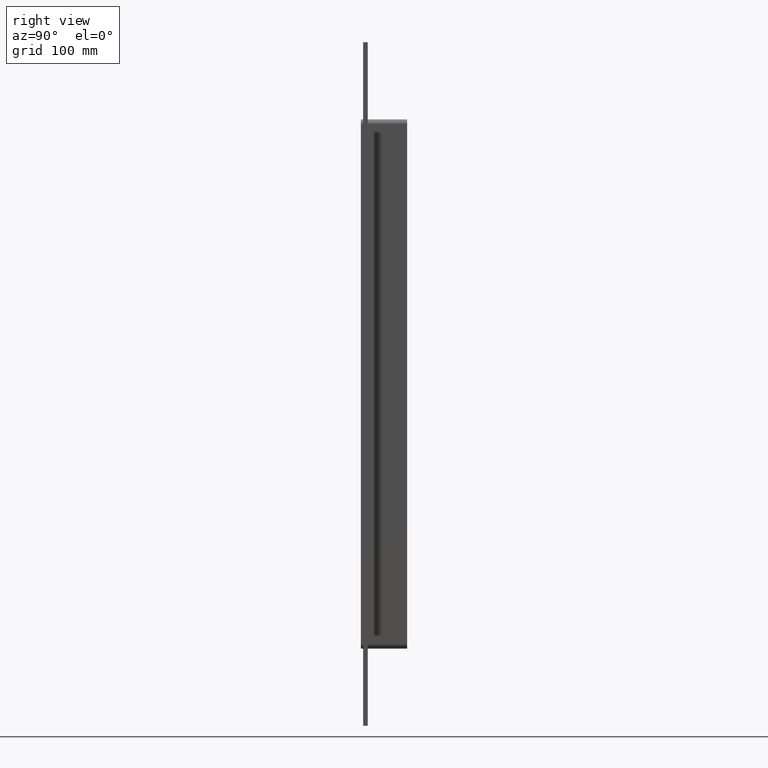
[diagram: clean part render]
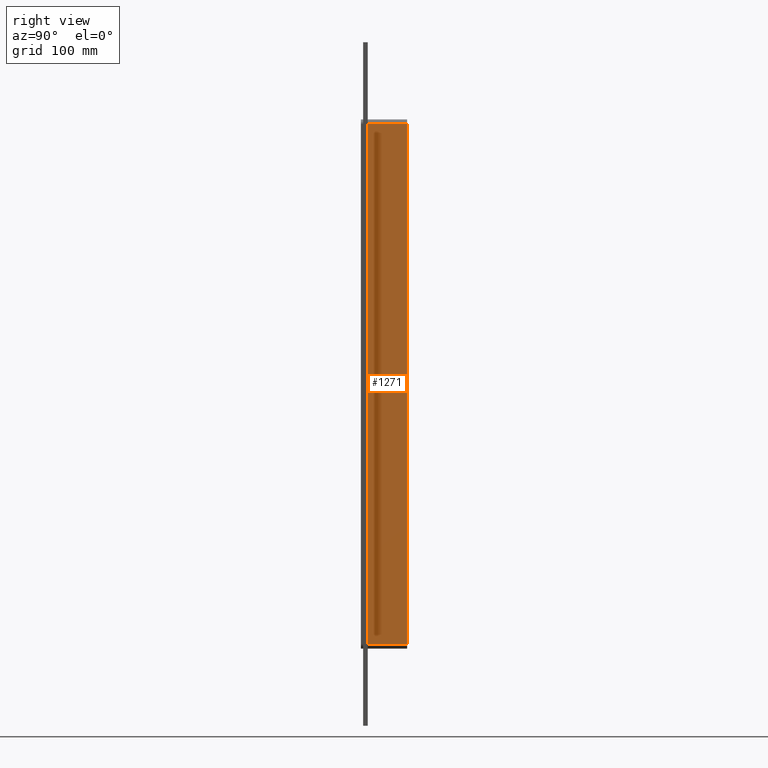
[diagram: same view with one face highlighted and labeled with its STEP entity id]
A machine part, right view. The second image highlights one B-rep face of the part: STEP entity #1271.
In plain terms, the highlighted planar face has unit normal (1, 0, 0).
Its self-contained STEP definition (entity closure, byte-faithful):
#857=CARTESIAN_POINT('',(66.25,6.000000000000001,-336.99999999999989));
#858=VERTEX_POINT('',#857);
#866=CARTESIAN_POINT('',(66.25,6.000000000000001,337.00000000000011));
#867=VERTEX_POINT('',#866);
#868=CARTESIAN_POINT('',(66.25,6.000000000000001,337.00000000000011));
#869=DIRECTION('',(0.0,0.0,-1.0));
#870=VECTOR('',#869,674.0);
#871=LINE('',#868,#870);
#872=EDGE_CURVE('',#867,#858,#871,.T.);
#1198=CARTESIAN_POINT('',(66.25,57.0,337.00000000000011));
#1199=VERTEX_POINT('',#1198);
#1200=CARTESIAN_POINT('',(66.25,6.000000000000001,337.00000000000011));
#1201=DIRECTION('',(0.0,1.0,0.0));
#1202=VECTOR('',#1201,51.0);
#1203=LINE('',#1200,#1202);
#1204=EDGE_CURVE('',#867,#1199,#1203,.T.);
#1248=CARTESIAN_POINT('',(66.25,0.0,343.00000000000011));
#1249=DIRECTION('',(1.0,0.0,0.0));
#1250=DIRECTION('',(0.0,0.0,-1.0));
#1251=AXIS2_PLACEMENT_3D('',#1248,#1249,#1250);
#1252=PLANE('',#1251);
#1253=ORIENTED_EDGE('',*,*,#872,.T.);
#1254=CARTESIAN_POINT('',(66.25,57.0,-336.99999999999989));
#1255=VERTEX_POINT('',#1254);
#1256=CARTESIAN_POINT('',(66.25,57.0,-336.99999999999989));
#1257=DIRECTION('',(0.0,-1.0,0.0));
#1258=VECTOR('',#1257,51.0);
#1259=LINE('',#1256,#1258);
#1260=EDGE_CURVE('',#1255,#858,#1259,.T.);
#1261=ORIENTED_EDGE('',*,*,#1260,.F.);
#1262=CARTESIAN_POINT('',(66.25,57.0,337.00000000000011));
#1263=DIRECTION('',(0.0,0.0,-1.0));
#1264=VECTOR('',#1263,674.0);
#1265=LINE('',#1262,#1264);
#1266=EDGE_CURVE('',#1199,#1255,#1265,.T.);
#1267=ORIENTED_EDGE('',*,*,#1266,.F.);
#1268=ORIENTED_EDGE('',*,*,#1204,.F.);
#1269=EDGE_LOOP('',(#1253,#1261,#1267,#1268));
#1270=FACE_OUTER_BOUND('',#1269,.T.);
#1271=ADVANCED_FACE('',(#1270),#1252,.T.);